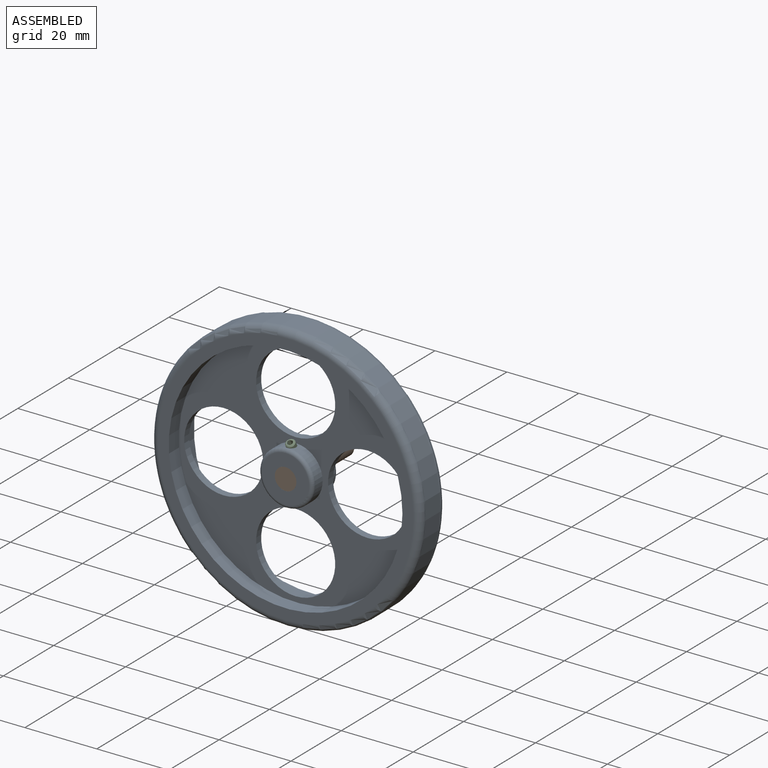
[diagram: assembled view]
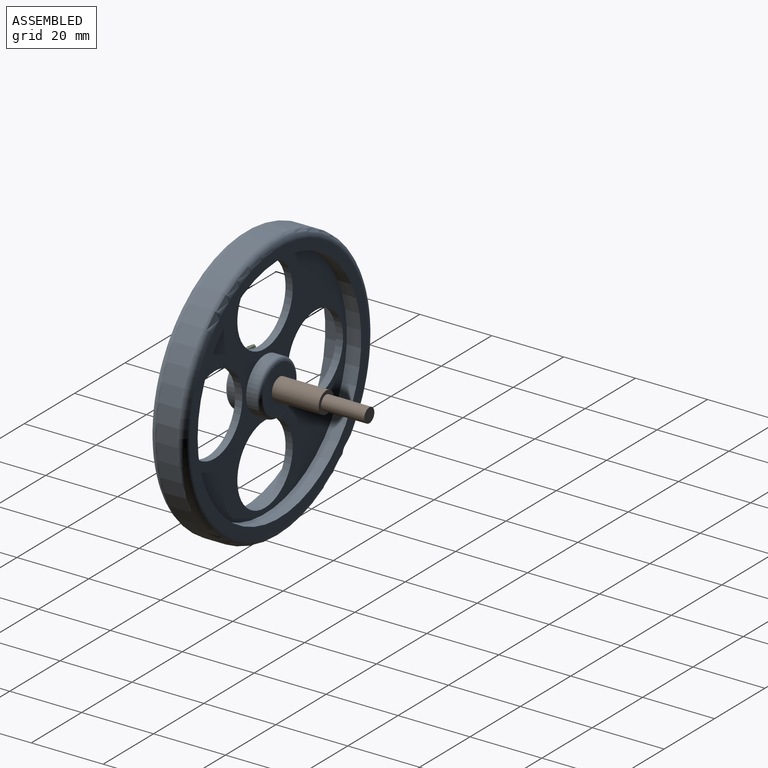
[diagram: assembled view, second angle]
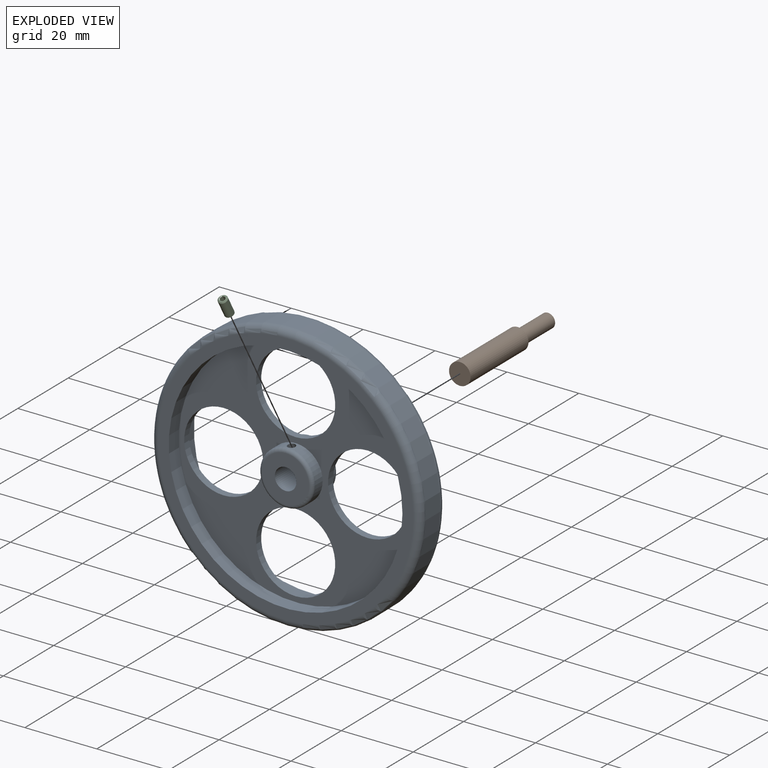
[diagram: exploded view]
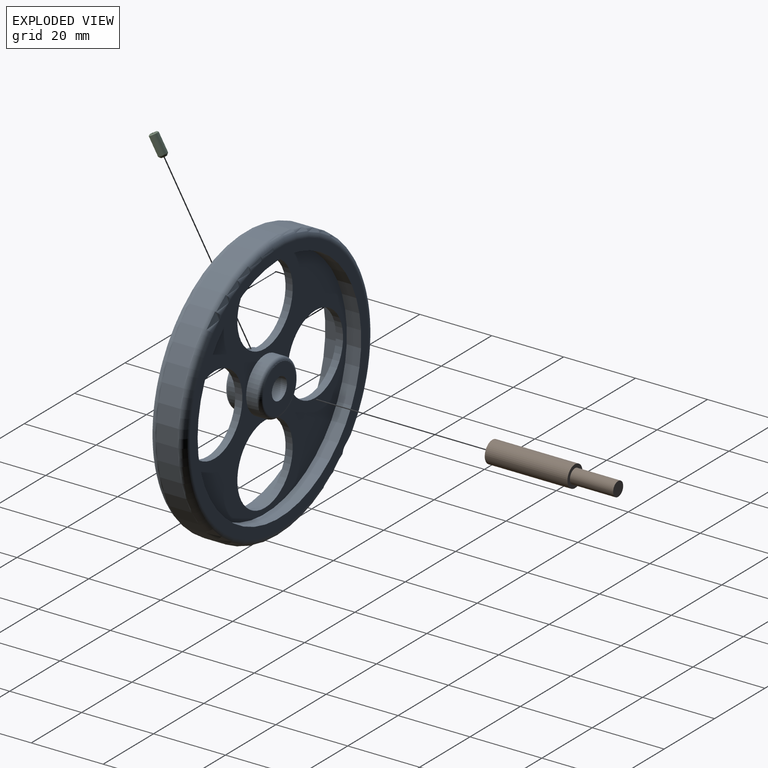
[diagram: exploded view, second angle]
ASSEMBLY  parts=3 mates=2
PART A: 21 faces, bbox 81.2x10x81.2 mm
  f0: cylinder r=7.5mm len=15mm, axis (0,1,0), area 137.6mm2, adj f2,f8,f20
  f1: cylinder r=3mm len=10mm, axis (0,1,0), area 184.6mm2, adj f3,f15,f20
  f2: plane 65x65mm, normal (0,-1,0), area 1621.1mm2, adj f0,f4,f9,f10,f11,f12
  f3: plane 13x13mm, normal (0,-1,0), area 104.5mm2, adj f1,f8
  f4: cylinder r=32.5mm len=65mm, axis (0,1,0), area 816.8mm2, adj f2,f6
  f5: cylinder r=37.5mm len=75mm, axis (0,1,0), area 1413.7mm2, adj f7,f18
  f6: plane 71x71mm, normal (0,-1,0), area 640.9mm2, adj f4,f7
  f7: torus R=35.5mm, axis (0,-1,0), area 725.9mm2, adj f5,f6
  f8: torus R=6.5mm, axis (0,-1,0), area 70.4mm2, adj f0,f3
  f9: cylinder r=11mm len=22mm, axis (0,1,0), area 138.2mm2, adj f2,f13
  f10: cylinder r=11mm len=22mm, axis (0,1,0), area 138.2mm2, adj f2,f13
  f11: cylinder r=11mm len=22mm, axis (0,1,0), area 138.2mm2, adj f2,f13
  f12: cylinder r=11mm len=22mm, axis (0,1,0), area 138.2mm2, adj f2,f13
  f13: plane 65x65mm, normal (0,1,0), area 1621.1mm2, adj f9,f10,f11,f12,f14,f16
  f14: cylinder r=7.5mm len=15mm, axis (0,-1,0), area 141.4mm2, adj f13,f19
  f15: plane 13x13mm, normal (0,1,0), area 104.5mm2, adj f1,f19
  f16: cylinder r=32.5mm len=65mm, axis (0,-1,0), area 816.8mm2, adj f13,f17
  f17: plane 71x71mm, normal (0,1,0), area 640.9mm2, adj f16,f18
  f18: torus R=35.5mm, axis (0,1,0), area 725.9mm2, adj f5,f17
  f19: torus R=6.5mm, axis (0,1,0), area 70.4mm2, adj f14,f15
  f20: cylinder r=1.03mm len=6.55mm, axis (0,-0.5,0.87), area 33.9mm2, adj f0,f1
PART B: 5 faces, bbox 6x35x6 mm
  f0: cylinder r=2mm len=12mm, axis (0,1,0), area 150.8mm2, adj f1,f4
  f1: plane 4x4mm, normal (0,-1,0), area 12.6mm2, adj f0
  f2: cylinder r=3mm len=23mm, axis (0,-1,0), area 433.5mm2, adj f3,f4
  f3: plane 6x6mm, normal (0,1,0), area 28.3mm2, adj f2
  f4: plane 6x6mm, normal (0,-1,0), area 15.7mm2, adj f0,f2
PART C: 26 faces, bbox 6.2x2.7x2.7 mm
  f0: plane 1.95x1.95mm, normal (-1,0,0), area 1.2mm2, adj f1,f17,f18,f19,f20,f21,f22
  f1: cone r=0mm half-angle=60deg, axis (-1,0,0), area 0mm2, adj f0,f2
  f2: plane 2.23x0.88mm, normal (0,0.5,-0.87), area 1.5mm2, adj f1,f3,f14,f15,f16
  f3: plane 0.56x0.33mm, normal (-1,0,0), area 0mm2, adj f2,f4,f16
  f4: cylinder r=0.65mm len=1.3mm, axis (1,0,0), area 0mm2, adj f3,f5,f9,f10,f11,f12,f14
  f5: plane 0.56x0.33mm, normal (-1,0,0), area 0mm2, adj f4,f6,f16
  f6: plane 2.23x0.88mm, normal (0,0.5,0.87), area 1.5mm2, adj f5,f7,f11,f16,f20
  f7: plane 2.23x0.88mm, normal (0,-0.5,0.87), area 1.5mm2, adj f6,f8,f10,f11,f19
  f8: plane 2.23x0.99mm, normal (0,-1,0), area 1.5mm2, adj f7,f9,f10,f15,f18
  f9: plane 0.56x0.33mm, normal (-1,0,0), area 0mm2, adj f4,f8,f15
  f10: plane 0.56x0.33mm, normal (-1,0,0), area 0mm2, adj f4,f7,f8
  f11: plane 0.65x0.19mm, normal (-1,0,0), area 0mm2, adj f4,f6,f7
  f12: plane 1.3x1.3mm, normal (-1,0,0), area 0.1mm2, adj f4,f13
  f13: cone r=0.65mm half-angle=60deg, axis (-1,0,0), area 1.5mm2, adj f12
  f14: plane 0.65x0.19mm, normal (-1,0,0), area 0mm2, adj f2,f4,f15
  f15: plane 2.23x0.88mm, normal (0,-0.5,-0.87), area 1.5mm2, adj f2,f8,f9,f14,f17
  f16: plane 2.23x0.99mm, normal (0,1,0), area 1.5mm2, adj f2,f3,f5,f6,f21
  f17: cone r=0mm half-angle=60deg, axis (-1,0,0), area 0mm2, adj f0,f15
  f18: cone r=0mm half-angle=60deg, axis (-1,0,0), area 0mm2, adj f0,f8
  f19: cone r=0mm half-angle=60deg, axis (-1,0,0), area 0mm2, adj f0,f7
  f20: cone r=0mm half-angle=60deg, axis (-1,0,0), area 0mm2, adj f0,f6
  f21: cone r=0mm half-angle=60deg, axis (-1,0,0), area 0mm2, adj f0,f16
  f22: cone r=0.97mm half-angle=45deg, axis (1,0,0), area 2.7mm2, adj f0,f23
  f23: cylinder r=1.25mm len=5.22mm, axis (1,0,0), area 41mm2, adj f22,f24
  f24: cone r=1.25mm half-angle=45deg, axis (-1,0,0), area 4.4mm2, adj f23,f25
  f25: plane 1.5x1.5mm, normal (1,0,0), area 1.8mm2, adj f24
PLACE A at identity fixed
PLACE B rot(axis=(1,0,0),180deg) t=(0,18,0)mm
PLACE C rot(axis=(-0.69,-0.19,0.69),158.9deg) t=(0,-3.29,8.53)mm
MATE fastened C.f4 <-> A.f20  axis (0,0.5,-0.87) through (0,-1.84,6.03)mm
MATE fastened A.f0 <-> B.f2  axis (0,1,0) through (0,-5,0)mm
